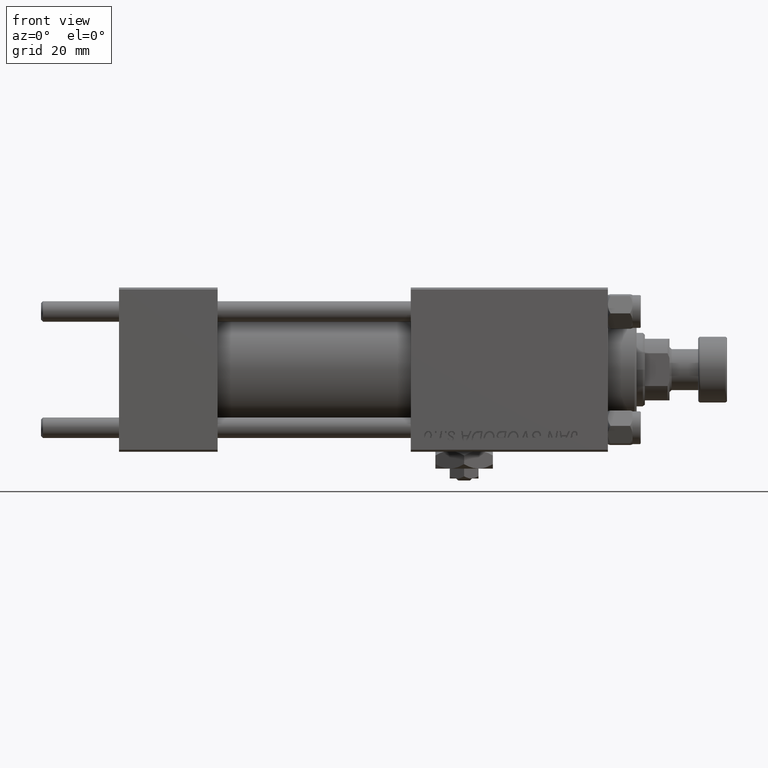
[diagram: clean part render]
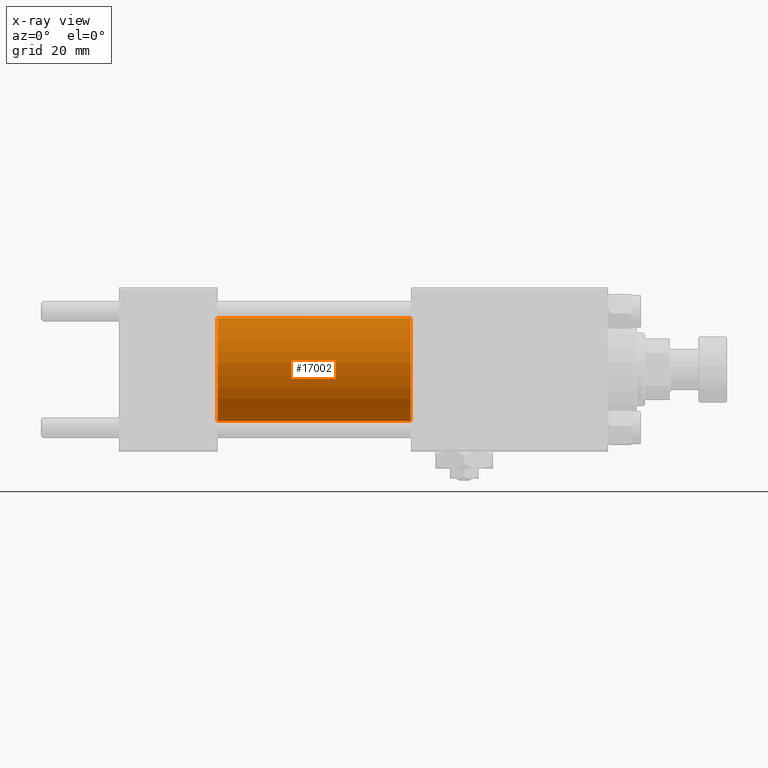
[diagram: x-ray — body ghosted, one internal face saturated and labeled with its STEP entity id]
A machine part, front view, then the same camera in x-ray: the body is ghosted and one INTERNAL B-rep face — a face not visible from any outside direction — is saturated and labeled: STEP entity #17002.
In plain terms, the highlighted cylindrical surface (partial cylindrical patch) has radius 12.5 mm, axis along (-1, -0, -0).
Its self-contained STEP definition (entity closure, byte-faithful):
#2308 = ORIENTED_EDGE ( 'NONE', *, *, #32028, .T. ) ;
#6975 = DIRECTION ( 'NONE',  ( -1.000000000000000000, -0.000000000000000000, -0.000000000000000000 ) ) ;
#7200 = AXIS2_PLACEMENT_3D ( 'NONE', #23618, #34927, #39126 ) ;
#9532 = EDGE_CURVE ( 'NONE', #13533, #32174, #46991, .T. ) ;
#12047 = CARTESIAN_POINT ( 'NONE',  ( 24.00000000000000000, 0.000000000000000000, 0.000000000000000000 ) ) ;
#12177 = CIRCLE ( 'NONE', #22271, 12.49999999999999645 ) ;
#13533 = VERTEX_POINT ( 'NONE', #35412 ) ;
#14596 = FACE_OUTER_BOUND ( 'NONE', #29125, .T. ) ;
#17002 = ADVANCED_FACE ( 'NONE', ( #14596 ), #33638, .F. ) ;
#17284 = VECTOR ( 'NONE', #34610, 1000.000000000000000 ) ;
#17844 = DIRECTION ( 'NONE',  ( -1.000000000000000000, -0.000000000000000000, -0.000000000000000000 ) ) ;
#19099 = CARTESIAN_POINT ( 'NONE',  ( 71.00000000000001421, 1.530808498934191127E-15, -12.49999999999999645 ) ) ;
#19122 = ORIENTED_EDGE ( 'NONE', *, *, #29711, .F. ) ;
#19335 = LINE ( 'NONE', #47217, #29039 ) ;
#20227 = DIRECTION ( 'NONE',  ( 0.000000000000000000, 0.000000000000000000, -1.000000000000000000 ) ) ;
#22244 = CARTESIAN_POINT ( 'NONE',  ( 71.00000000000001421, 0.000000000000000000, 12.49999999999999645 ) ) ;
#22271 = AXIS2_PLACEMENT_3D ( 'NONE', #12047, #24175, #20227 ) ;
#23618 = CARTESIAN_POINT ( 'NONE',  ( 71.00000000000001421, 0.000000000000000000, 0.000000000000000000 ) ) ;
#24175 = DIRECTION ( 'NONE',  ( 1.000000000000000000, 0.000000000000000000, 0.000000000000000000 ) ) ;
#28006 = ORIENTED_EDGE ( 'NONE', *, *, #32499, .F. ) ;
#29039 = VECTOR ( 'NONE', #6975, 1000.000000000000000 ) ;
#29125 = EDGE_LOOP ( 'NONE', ( #2308, #51988, #19122, #28006 ) ) ;
#29445 = VERTEX_POINT ( 'NONE', #22244 ) ;
#29711 = EDGE_CURVE ( 'NONE', #35860, #32174, #12177, .T. ) ;
#32028 = EDGE_CURVE ( 'NONE', #29445, #13533, #32420, .T. ) ;
#32174 = VERTEX_POINT ( 'NONE', #39897 ) ;
#32420 = CIRCLE ( 'NONE', #7200, 12.49999999999999645 ) ;
#32499 = EDGE_CURVE ( 'NONE', #29445, #35860, #19335, .T. ) ;
#32847 = CARTESIAN_POINT ( 'NONE',  ( 71.00000000000001421, 0.000000000000000000, 0.000000000000000000 ) ) ;
#33638 = CYLINDRICAL_SURFACE ( 'NONE', #42723, 12.49999999999999645 ) ;
#34610 = DIRECTION ( 'NONE',  ( -1.000000000000000000, -0.000000000000000000, -0.000000000000000000 ) ) ;
#34927 = DIRECTION ( 'NONE',  ( 1.000000000000000000, 0.000000000000000000, 0.000000000000000000 ) ) ;
#35412 = CARTESIAN_POINT ( 'NONE',  ( 71.00000000000001421, 1.530808498934191127E-15, -12.49999999999999645 ) ) ;
#35860 = VERTEX_POINT ( 'NONE', #43976 ) ;
#39126 = DIRECTION ( 'NONE',  ( 0.000000000000000000, 0.000000000000000000, -1.000000000000000000 ) ) ;
#39897 = CARTESIAN_POINT ( 'NONE',  ( 24.00000000000000000, 1.530808498934191127E-15, -12.49999999999999645 ) ) ;
#42723 = AXIS2_PLACEMENT_3D ( 'NONE', #32847, #17844, #49698 ) ;
#43976 = CARTESIAN_POINT ( 'NONE',  ( 24.00000000000000000, 0.000000000000000000, 12.49999999999999645 ) ) ;
#46991 = LINE ( 'NONE', #19099, #17284 ) ;
#47217 = CARTESIAN_POINT ( 'NONE',  ( 71.00000000000001421, 0.000000000000000000, 12.49999999999999645 ) ) ;
#49698 = DIRECTION ( 'NONE',  ( 0.000000000000000000, 0.000000000000000000, 1.000000000000000000 ) ) ;
#51988 = ORIENTED_EDGE ( 'NONE', *, *, #9532, .T. ) ;